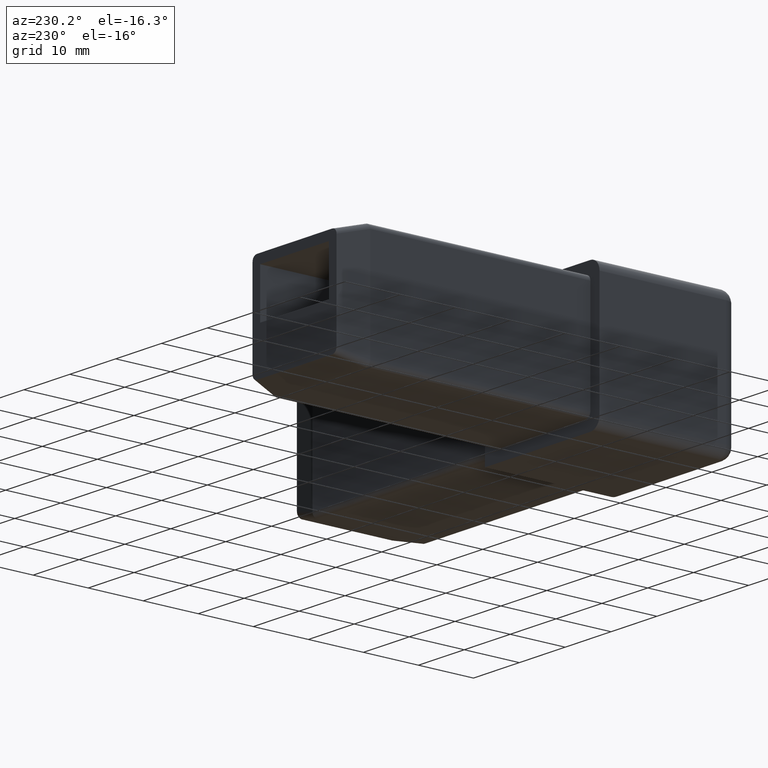
[diagram: clean part render]
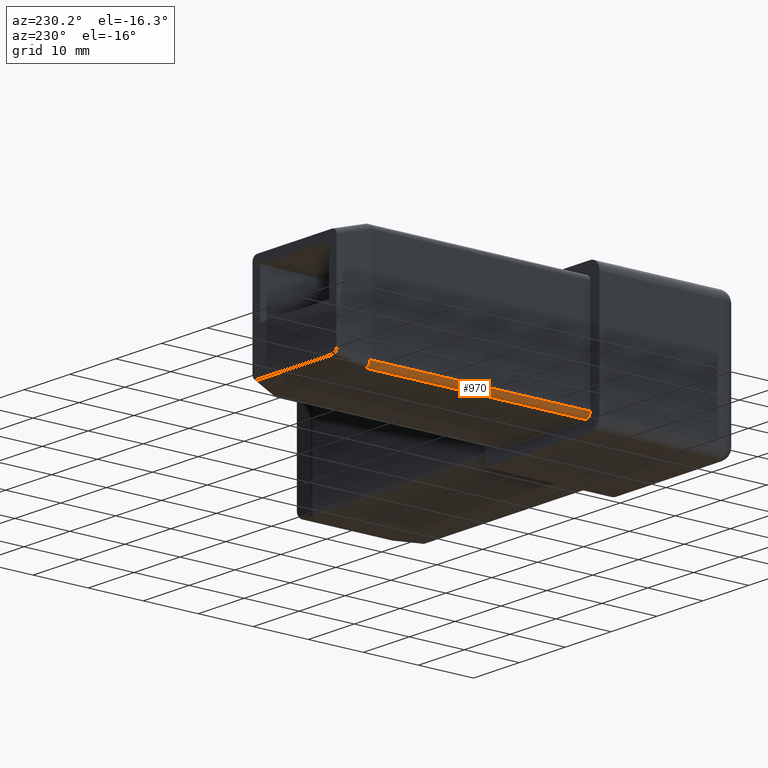
[diagram: same view with one face highlighted and labeled with its STEP entity id]
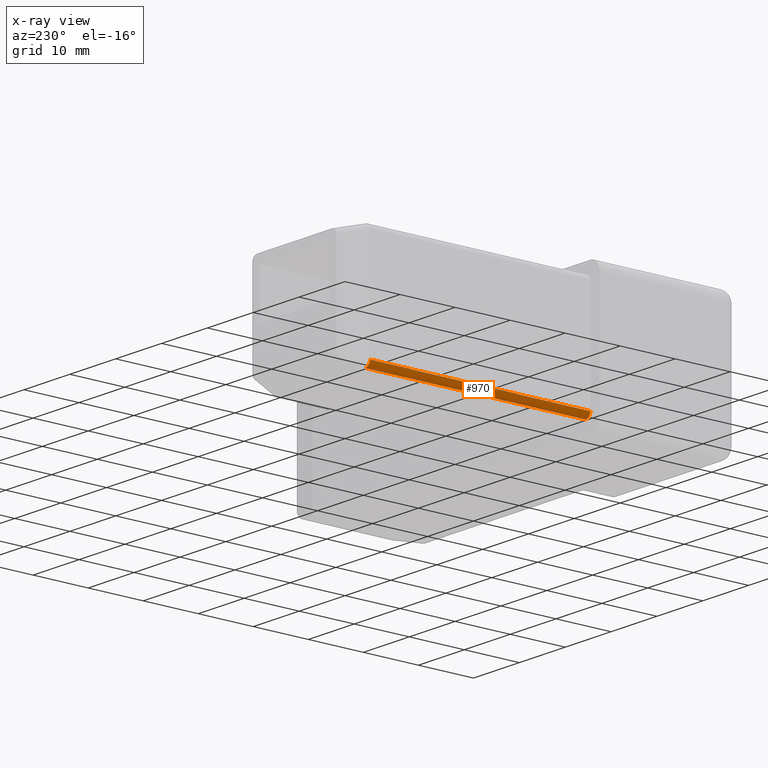
[diagram: x-ray of the same camera — body ghosted, the highlighted face saturated]
A machine part, auxiliary view. The second image highlights one B-rep face of the part: STEP entity #970.
The next image is the same camera in x-ray: the body ghosted, the highlighted face saturated — about 0% of this face is hidden behind the body in this view.
In plain terms, the highlighted cylindrical surface (edge-blend (fillet) strip) has radius 1 mm, axis along (-0, 1, 0).
Its self-contained STEP definition (entity closure, byte-faithful):
#22=CIRCLE('',#1037,1.);
#47=ELLIPSE('',#1038,3.86370330515628,1.);
#48=ELLIPSE('',#1039,1.0166274182762,1.);
#49=ELLIPSE('',#1040,3.86370330515627,1.);
#73=CYLINDRICAL_SURFACE('',#1036,1.);
#105=FACE_OUTER_BOUND('',#161,.T.);
#161=EDGE_LOOP('',(#703,#704,#705,#706,#707,#708));
#240=LINE('',#1519,#335);
#241=LINE('',#1526,#336);
#335=VECTOR('',#1203,40.);
#336=VECTOR('',#1210,40.);
#427=VERTEX_POINT('',#1515);
#428=VERTEX_POINT('',#1516);
#429=VERTEX_POINT('',#1518);
#430=VERTEX_POINT('',#1520);
#431=VERTEX_POINT('',#1522);
#432=VERTEX_POINT('',#1524);
#533=EDGE_CURVE('',#427,#428,#22,.F.);
#534=EDGE_CURVE('',#428,#429,#240,.T.);
#535=EDGE_CURVE('',#429,#430,#47,.T.);
#536=EDGE_CURVE('',#430,#431,#48,.T.);
#537=EDGE_CURVE('',#431,#432,#49,.T.);
#538=EDGE_CURVE('',#432,#427,#241,.T.);
#703=ORIENTED_EDGE('',*,*,#533,.T.);
#704=ORIENTED_EDGE('',*,*,#534,.T.);
#705=ORIENTED_EDGE('',*,*,#535,.T.);
#706=ORIENTED_EDGE('',*,*,#536,.T.);
#707=ORIENTED_EDGE('',*,*,#537,.T.);
#708=ORIENTED_EDGE('',*,*,#538,.T.);
#970=ADVANCED_FACE('',(#105),#73,.T.);
#1036=AXIS2_PLACEMENT_3D('',#1514,#1199,#1200);
#1037=AXIS2_PLACEMENT_3D('',#1517,#1201,#1202);
#1038=AXIS2_PLACEMENT_3D('',#1521,#1204,#1205);
#1039=AXIS2_PLACEMENT_3D('',#1523,#1206,#1207);
#1040=AXIS2_PLACEMENT_3D('',#1525,#1208,#1209);
#1199=DIRECTION('center_axis',(-1.2335811384724E-15,1.,0.));
#1200=DIRECTION('ref_axis',(-0.707106781186547,0.,-0.707106781186548));
#1201=DIRECTION('center_axis',(1.24344978758018E-15,-1.,0.));
#1202=DIRECTION('ref_axis',(-0.707106781186547,0.,-0.707106781186548));
#1203=DIRECTION('',(-1.2335811384724E-15,1.,0.));
#1204=DIRECTION('center_axis',(0.965925826289069,-0.258819045102519,1.62390953995968E-16));
#1205=DIRECTION('ref_axis',(-0.258819045102519,-0.965925826289069,-5.3877536828309E-17));
#1206=DIRECTION('center_axis',(-0.127364509841788,-0.983644530948819,-0.127364509841788));
#1207=DIRECTION('ref_axis',(0.695541718110974,-0.180120617183258,0.695541718110968));
#1208=DIRECTION('center_axis',(2.3348284492181E-16,-0.258819045102521,0.965925826289068));
#1209=DIRECTION('ref_axis',(1.13142827339449E-15,-0.965925826289068,-0.258819045102521));
#1210=DIRECTION('',(1.2335811384724E-15,-1.,0.));
#1514=CARTESIAN_POINT('Origin',(-9.49999999999999,12.5,3.));
#1515=CARTESIAN_POINT('',(-9.49999999999999,12.5,2.));
#1516=CARTESIAN_POINT('',(-10.5,12.5,3.));
#1517=CARTESIAN_POINT('Origin',(-9.49999999999999,12.5,3.));
#1518=CARTESIAN_POINT('',(-10.5,52.5,3.));
#1519=CARTESIAN_POINT('',(-10.5,12.5,3.));
#1520=CARTESIAN_POINT('',(-10.4994382993218,52.5020962954697,2.96648752696728));
#1521=CARTESIAN_POINT('Origin',(-9.50000000000004,56.2320508075689,3.));
#1522=CARTESIAN_POINT('',(-9.53351247303276,52.5020962954697,2.00056170067821));
#1523=CARTESIAN_POINT('Origin',(-9.50000000000004,52.3683475024126,3.));
#1524=CARTESIAN_POINT('',(-9.50000000000004,52.5,2.));
#1525=CARTESIAN_POINT('Origin',(-9.50000000000004,56.2320508075689,3.));
#1526=CARTESIAN_POINT('',(-9.49999999999999,12.5,2.));